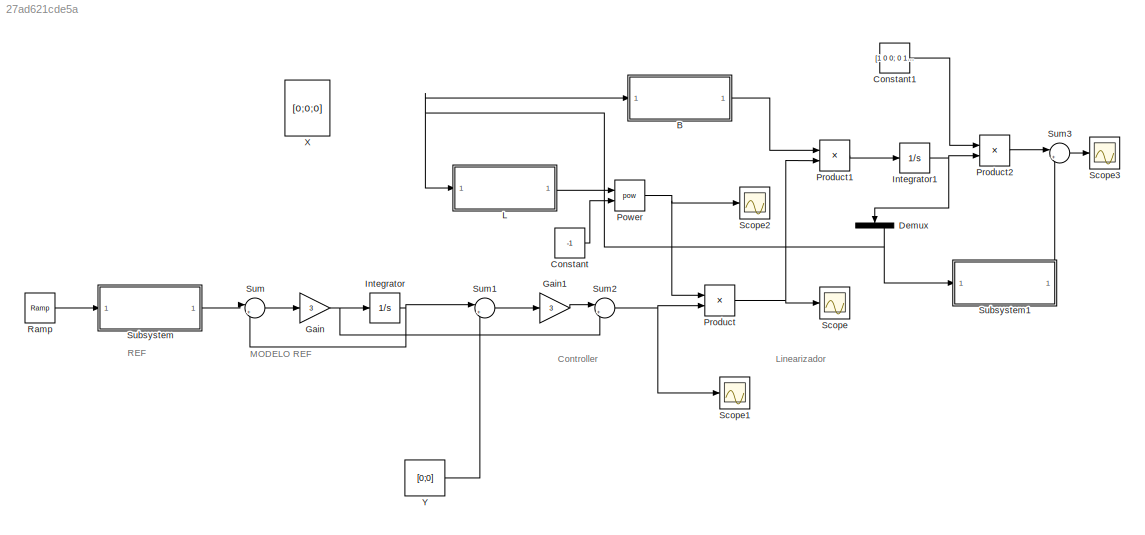
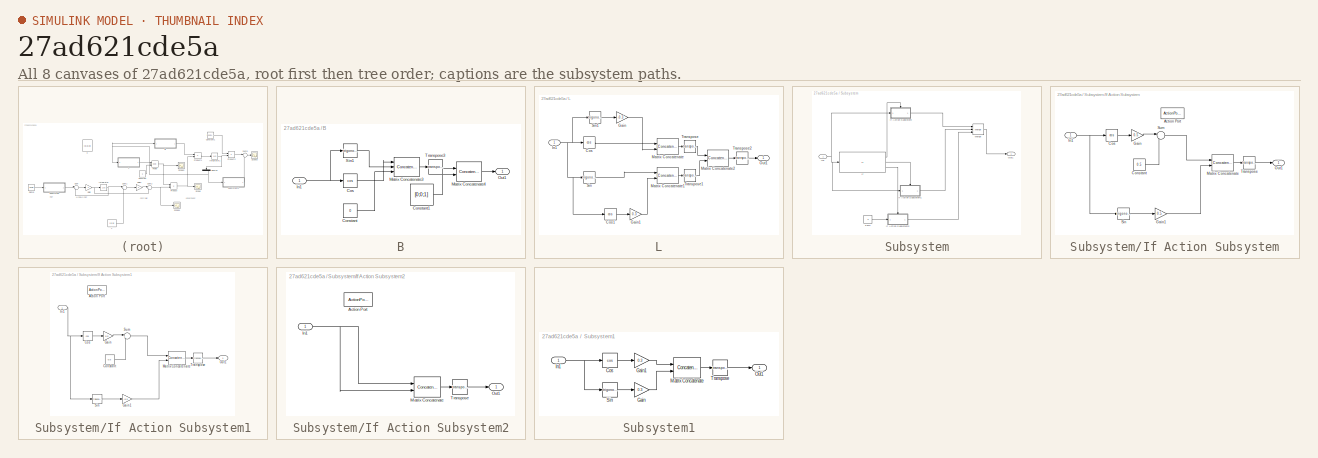
[diagram: thumbnail index - all 8 canvases of the model, root first then tree order]
MODEL slx_27ad621cde5a
KIND model
CONFIG AbsTol = auto
CONFIG EnableMultiTasking = off
CONFIG FixedStep = auto
CONFIG MaxStep = auto
CONFIG MinStep = auto
CONFIG RelTol = 1e-3
CONFIG SampleTimeConstraint = Unconstrained
CONFIG SolverName = VariableStepAuto
CONFIG StartTime = 0.0
CONFIG StopTime = 10.0
BLOCK [SubSystem] B
  Ports = [1, 1]
  RequestExecContextInheritance = off
BLOCK [Constant] B/Constant
  Value = 0
BLOCK [Constant] B/Constant1
  Value = [0;0;1]
  VectorParams1D = off
BLOCK [Trigonometry] B/Cos
  Operator = cos
  Ports = [1, 1]
BLOCK [Inport] B/In1
BLOCK [Concatenate] B/Matrix Concatenate3
  ConcatenateDimension = 2
  Mode = Multidimensional array
  NumInputs = 3
  Ports = [3, 1]
BLOCK [Concatenate] B/Matrix Concatenate4
  ConcatenateDimension = 2
  Mode = Multidimensional array
  Ports = [2, 1]
BLOCK [Outport] B/Out1
BLOCK [Trigonometry] B/Sin1
  Ports = [1, 1]
BLOCK [Math] B/Transpose3
  Operator = transpose
  Ports = [1, 1]
BLOCK [Constant] Constant
  Value = -1
BLOCK [Constant] Constant1
  Value = [1 0 0; 0 1 0]
  VectorParams1D = off
BLOCK [Demux] Demux
  NameLocation = left
  Outputs = 3
  Ports = [1, 3]
BLOCK [Gain] Gain
  Gain = 3
BLOCK [Gain] Gain1
  Gain = 3
BLOCK [Integrator] Integrator
  Ports = [1, 1]
BLOCK [Integrator] Integrator1
  Ports = [1, 1]
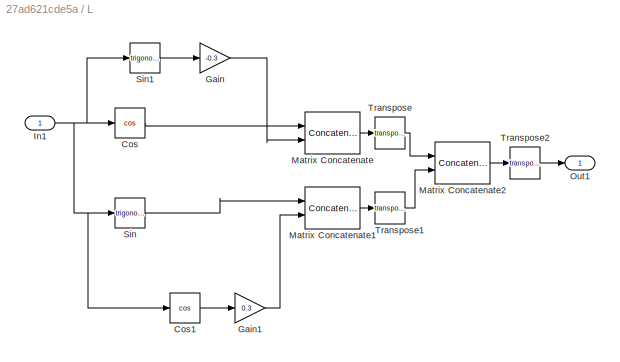
BLOCK [SubSystem] L
  Ports = [1, 1]
  RequestExecContextInheritance = off
BLOCK [Trigonometry] L/Cos
  Operator = cos
  Ports = [1, 1]
BLOCK [Trigonometry] L/Cos1
  Operator = cos
  Ports = [1, 1]
BLOCK [Gain] L/Gain
  Gain = -0.3
BLOCK [Gain] L/Gain1
  Gain = 0.3
BLOCK [Inport] L/In1
BLOCK [Concatenate] L/Matrix Concatenate
  ConcatenateDimension = 2
  Mode = Multidimensional array
  Ports = [2, 1]
BLOCK [Concatenate] L/Matrix Concatenate1
  ConcatenateDimension = 2
  Mode = Multidimensional array
  Ports = [2, 1]
BLOCK [Concatenate] L/Matrix Concatenate2
  ConcatenateDimension = 2
  Mode = Multidimensional array
  Ports = [2, 1]
BLOCK [Outport] L/Out1
BLOCK [Trigonometry] L/Sin
  Ports = [1, 1]
BLOCK [Trigonometry] L/Sin1
  Ports = [1, 1]
BLOCK [Math] L/Transpose
  Operator = transpose
  Ports = [1, 1]
BLOCK [Math] L/Transpose1
  Operator = transpose
  Ports = [1, 1]
BLOCK [Math] L/Transpose2
  Operator = transpose
  Ports = [1, 1]
BLOCK [Math] Power
  Operator = pow
  Ports = [2, 1]
BLOCK [Product] Product
  Multiplication = Matrix(*)
  Ports = [2, 1]
BLOCK [Product] Product1
  Multiplication = Matrix(*)
  Ports = [2, 1]
BLOCK [Product] Product2
  Multiplication = Matrix(*)
  Ports = [2, 1]
BLOCK [Reference] Ramp  REF=simulink/Sources/Ramp
  Ports = [0, 1]
  SourceBlock = simulink/Sources/Ramp
  SourceProductBaseCode = SL
  SourceType = Ramp
BLOCK [Scope] Scope
  Floating = off
  NumInputPorts = 1
  Ports = [1]
  ScopeSpecificationString = Simulink.scopes.TimeScopeBlockCfg('CurrentConfiguration', extmgr.ConfigurationSet(extmgr.Configuration('Core','General UI',true),extmgr.Configuration('Core','Source UI',true),extmgr.Configuration('Sources','WiredSimulink',true),extmgr.Configuration('Visuals','Time Domain',true,'SerializedDisplays',{struct('MinYLimReal','-3.74697','MaxYLimReal','3.74831','YLabelReal','','MinYLimMag','0.00000','MaxY...<+1392ch>
BLOCK [Scope] Scope1
  Floating = off
  NumInputPorts = 1
  Ports = [1]
  ScopeSpecificationString = Simulink.scopes.TimeScopeBlockCfg('CurrentConfiguration', extmgr.ConfigurationSet(extmgr.Configuration('Core','General UI',true),extmgr.Configuration('Core','Source UI',true),extmgr.Configuration('Sources','WiredSimulink',true,'DataLoggingVariableName','ScopeData1'),extmgr.Configuration('Visuals','Time Domain',true,'SerializedDisplays',{struct('MinYLimReal','-1.00000','MaxYLimReal','1.00000','YLab...<+1424ch>
BLOCK [Scope] Scope2
  Floating = off
  NumInputPorts = 1
  Ports = [1]
  ScopeSpecificationString = Simulink.scopes.TimeScopeBlockCfg('CurrentConfiguration', extmgr.ConfigurationSet(extmgr.Configuration('Core','General UI',true),extmgr.Configuration('Core','Source UI',true),extmgr.Configuration('Sources','WiredSimulink',true,'DataLoggingVariableName','ScopeData2'),extmgr.Configuration('Visuals','Time Domain',true,'SerializedDisplays',{struct('MinYLimReal','0.70833','MaxYLimReal','3.625','YLabelR...<+1599ch>
BLOCK [Scope] Scope3
  Floating = off
  NumInputPorts = 1
  Ports = [1]
  ScopeSpecificationString = Simulink.scopes.TimeScopeBlockCfg('CurrentConfiguration', extmgr.ConfigurationSet(extmgr.Configuration('Core','General UI',true),extmgr.Configuration('Core','Source UI',true),extmgr.Configuration('Sources','WiredSimulink',true,'DataLoggingVariableName','ScopeData3'),extmgr.Configuration('Visuals','Time Domain',true),extmgr.Configuration('Tools','Plot Navigation',true),extmgr.Configuration('Tools',...<+40ch>
BLOCK [SubSystem] Subsystem
  Ports = [1, 1]
  RequestExecContextInheritance = off
BLOCK [If] Subsystem/If
  ElseIfExpressions = u1>=6.28318531 & u1<12.5663706
  IfExpression = u1>=0 & u1<6.28318531
  Ports = [1, 3]
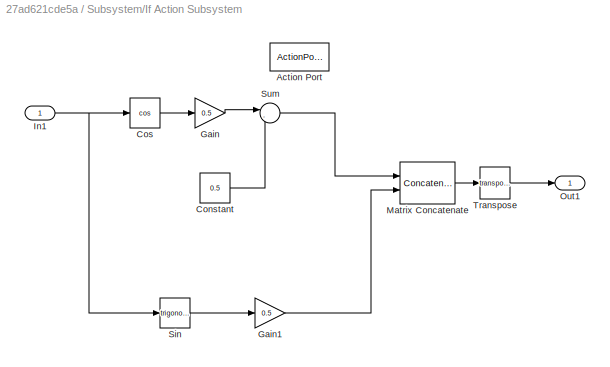
BLOCK [SubSystem] Subsystem/If Action Subsystem
  Ports = [1, 1, 0, 0, 0, 0, 0, 1]
  RequestExecContextInheritance = off
  TreatAsAtomicUnit = on
BLOCK [ActionPort] Subsystem/If Action Subsystem/Action Port
  ActionPortLabel = if(u1>=0 & u1<6.28318531)
BLOCK [Constant] Subsystem/If Action Subsystem/Constant
  Value = 0.5
BLOCK [Trigonometry] Subsystem/If Action Subsystem/Cos
  Operator = cos
  Ports = [1, 1]
BLOCK [Gain] Subsystem/If Action Subsystem/Gain
  Gain = 0.5
BLOCK [Gain] Subsystem/If Action Subsystem/Gain1
  Gain = 0.5
BLOCK [Inport] Subsystem/If Action Subsystem/In1
BLOCK [Concatenate] Subsystem/If Action Subsystem/Matrix Concatenate
  ConcatenateDimension = 2
  Mode = Multidimensional array
  Ports = [2, 1]
BLOCK [Outport] Subsystem/If Action Subsystem/Out1
BLOCK [Trigonometry] Subsystem/If Action Subsystem/Sin
  Ports = [1, 1]
BLOCK [Sum] Subsystem/If Action Subsystem/Sum
  Inputs = |-+
  Ports = [2, 1]
BLOCK [Math] Subsystem/If Action Subsystem/Transpose
  Operator = transpose
  Ports = [1, 1]
BLOCK [SubSystem] Subsystem/If Action Subsystem1
  Ports = [1, 1, 0, 0, 0, 0, 0, 1]
  RequestExecContextInheritance = off
  TreatAsAtomicUnit = on
BLOCK [ActionPort] Subsystem/If Action Subsystem1/Action Port
  ActionPortLabel = elseif(u1>=6.28318531 & u1<12.5663706)
BLOCK [Constant] Subsystem/If Action Subsystem1/Constant
  Value = 0.5
BLOCK [Trigonometry] Subsystem/If Action Subsystem1/Cos
  Operator = cos
  Ports = [1, 1]
BLOCK [Gain] Subsystem/If Action Subsystem1/Gain
  Gain = 0.5
BLOCK [Gain] Subsystem/If Action Subsystem1/Gain1
  Gain = -0.5
BLOCK [Inport] Subsystem/If Action Subsystem1/In1
BLOCK [Concatenate] Subsystem/If Action Subsystem1/Matrix Concatenate
  ConcatenateDimension = 2
  Mode = Multidimensional array
  Ports = [2, 1]
BLOCK [Outport] Subsystem/If Action Subsystem1/Out1
BLOCK [Trigonometry] Subsystem/If Action Subsystem1/Sin
  Ports = [1, 1]
BLOCK [Sum] Subsystem/If Action Subsystem1/Sum
  Inputs = |+-
  Ports = [2, 1]
BLOCK [Math] Subsystem/If Action Subsystem1/Transpose
  Operator = transpose
  Ports = [1, 1]
BLOCK [SubSystem] Subsystem/If Action Subsystem2
  Ports = [1, 1, 0, 0, 0, 0, 0, 1]
  RequestExecContextInheritance = off
  TreatAsAtomicUnit = on
BLOCK [ActionPort] Subsystem/If Action Subsystem2/Action Port
  ActionPortLabel = else
BLOCK [Inport] Subsystem/If Action Subsystem2/In1
BLOCK [Concatenate] Subsystem/If Action Subsystem2/Matrix Concatenate
  ConcatenateDimension = 2
  Mode = Multidimensional array
  Ports = [2, 1]
BLOCK [Outport] Subsystem/If Action Subsystem2/Out1
BLOCK [Math] Subsystem/If Action Subsystem2/Transpose
  Operator = transpose
  Ports = [1, 1]
BLOCK [Inport] Subsystem/In1
BLOCK [Merge] Subsystem/Merge
  Inputs = 3
  Ports = [3, 1]
BLOCK [Outport] Subsystem/Out1
BLOCK [Constant] Subsystem/Zero
  OutDataTypeStr = Inherit: Inherit via back propagation
  Value = 0
BLOCK [SubSystem] Subsystem1
  Ports = [1, 1]
  RequestExecContextInheritance = off
BLOCK [Trigonometry] Subsystem1/Cos
  Operator = cos
  Ports = [1, 1]
BLOCK [Gain] Subsystem1/Gain
  Gain = 0.3
BLOCK [Gain] Subsystem1/Gain1
  Gain = 0.3
BLOCK [Inport] Subsystem1/In1
BLOCK [Concatenate] Subsystem1/Matrix Concatenate
  ConcatenateDimension = 2
  Mode = Multidimensional array
  Ports = [2, 1]
BLOCK [Outport] Subsystem1/Out1
BLOCK [Trigonometry] Subsystem1/Sin
  Ports = [1, 1]
BLOCK [Math] Subsystem1/Transpose
  Operator = transpose
  Ports = [1, 1]
BLOCK [Sum] Sum
  Inputs = |+-
  Ports = [2, 1]
BLOCK [Sum] Sum1
  Inputs = |+-
  Ports = [2, 1]
BLOCK [Sum] Sum2
  Inputs = |++
  Ports = [2, 1]
BLOCK [Sum] Sum3
  Inputs = |++
  Ports = [2, 1]
BLOCK [Constant] X
  Value = [0;0;0]
  VectorParams1D = off
BLOCK [Constant] Y
  Value = [0;0]
  VectorParams1D = off
ANNOTATION (root): Controller
ANNOTATION (root): Linearizador
ANNOTATION (root): REF
ANNOTATION (root): MODELO REF
LINE B/Constant1:1 -> B/Matrix Concatenate4:2
LINE B/Constant:1 -> B/Matrix Concatenate3:3
LINE B/Cos:1 -> B/Matrix Concatenate3:1
NET B/In1:1 -> B/Cos:1, B/Sin1:1
LINE B/Matrix Concatenate3:1 -> B/Transpose3:1
LINE B/Matrix Concatenate4:1 -> B/Out1:1
LINE B/Sin1:1 -> B/Matrix Concatenate3:2
LINE B/Transpose3:1 -> B/Matrix Concatenate4:1
LINE B:1 -> Product1:1
LINE Constant1:1 -> Product2:1
LINE Constant:1 -> Power:2
NET Demux:3 -> B:1, L:1, Subsystem1:1
LINE Gain1:1 -> Sum2:1
NET Gain:1 -> Integrator:1, Sum2:2
NET Integrator1:1 -> Demux:1, Product2:2
NET Integrator:1 -> Sum1:1, Sum:2
LINE L/Cos1:1 -> L/Gain1:1
LINE L/Cos:1 -> L/Matrix Concatenate:1
LINE L/Gain1:1 -> L/Matrix Concatenate1:2
LINE L/Gain:1 -> L/Matrix Concatenate:2
NET L/In1:1 -> L/Cos1:1, L/Cos:1, L/Sin1:1, L/Sin:1
LINE L/Matrix Concatenate1:1 -> L/Transpose1:1
LINE L/Matrix Concatenate2:1 -> L/Transpose2:1
LINE L/Matrix Concatenate:1 -> L/Transpose:1
LINE L/Sin1:1 -> L/Gain:1
LINE L/Sin:1 -> L/Matrix Concatenate1:1
LINE L/Transpose1:1 -> L/Matrix Concatenate2:2
LINE L/Transpose2:1 -> L/Out1:1
LINE L/Transpose:1 -> L/Matrix Concatenate2:1
LINE L:1 -> Power:1
NET Power:1 -> Product:1, Scope2:1
LINE Product1:1 -> Integrator1:1
LINE Product2:1 -> Sum3:1
NET Product:1 -> Product1:2, Scope:1
LINE Ramp:1 -> Subsystem:1
LINE Subsystem/If Action Subsystem/Constant:1 -> Subsystem/If Action Subsystem/Sum:2
LINE Subsystem/If Action Subsystem/Cos:1 -> Subsystem/If Action Subsystem/Gain:1
LINE Subsystem/If Action Subsystem/Gain1:1 -> Subsystem/If Action Subsystem/Matrix Concatenate:2
LINE Subsystem/If Action Subsystem/Gain:1 -> Subsystem/If Action Subsystem/Sum:1
NET Subsystem/If Action Subsystem/In1:1 -> Subsystem/If Action Subsystem/Cos:1, Subsystem/If Action Subsystem/Sin:1
LINE Subsystem/If Action Subsystem/Matrix Concatenate:1 -> Subsystem/If Action Subsystem/Transpose:1
LINE Subsystem/If Action Subsystem/Sin:1 -> Subsystem/If Action Subsystem/Gain1:1
LINE Subsystem/If Action Subsystem/Sum:1 -> Subsystem/If Action Subsystem/Matrix Concatenate:1
LINE Subsystem/If Action Subsystem/Transpose:1 -> Subsystem/If Action Subsystem/Out1:1
LINE Subsystem/If Action Subsystem1/Constant:1 -> Subsystem/If Action Subsystem1/Sum:2
LINE Subsystem/If Action Subsystem1/Cos:1 -> Subsystem/If Action Subsystem1/Gain:1
LINE Subsystem/If Action Subsystem1/Gain1:1 -> Subsystem/If Action Subsystem1/Matrix Concatenate:2
LINE Subsystem/If Action Subsystem1/Gain:1 -> Subsystem/If Action Subsystem1/Sum:1
NET Subsystem/If Action Subsystem1/In1:1 -> Subsystem/If Action Subsystem1/Cos:1, Subsystem/If Action Subsystem1/Sin:1
LINE Subsystem/If Action Subsystem1/Matrix Concatenate:1 -> Subsystem/If Action Subsystem1/Transpose:1
LINE Subsystem/If Action Subsystem1/Sin:1 -> Subsystem/If Action Subsystem1/Gain1:1
LINE Subsystem/If Action Subsystem1/Sum:1 -> Subsystem/If Action Subsystem1/Matrix Concatenate:1
LINE Subsystem/If Action Subsystem1/Transpose:1 -> Subsystem/If Action Subsystem1/Out1:1
LINE Subsystem/If Action Subsystem1:1 -> Subsystem/Merge:2
NET Subsystem/If Action Subsystem2/In1:1 -> Subsystem/If Action Subsystem2/Matrix Concatenate:1, Subsystem/If Action Subsystem2/Matrix Concatenate:2
LINE Subsystem/If Action Subsystem2/Matrix Concatenate:1 -> Subsystem/If Action Subsystem2/Transpose:1
LINE Subsystem/If Action Subsystem2/Transpose:1 -> Subsystem/If Action Subsystem2/Out1:1
LINE Subsystem/If Action Subsystem2:1 -> Subsystem/Merge:3
LINE Subsystem/If Action Subsystem:1 -> Subsystem/Merge:1
LINE Subsystem/If:1 -> Subsystem/If Action Subsystem:ifaction
LINE Subsystem/If:2 -> Subsystem/If Action Subsystem1:ifaction
LINE Subsystem/If:3 -> Subsystem/If Action Subsystem2:ifaction
NET Subsystem/In1:1 -> Subsystem/If Action Subsystem1:1, Subsystem/If Action Subsystem:1, Subsystem/If:1
LINE Subsystem/Merge:1 -> Subsystem/Out1:1
LINE Subsystem/Zero:1 -> Subsystem/If Action Subsystem2:1
LINE Subsystem1/Cos:1 -> Subsystem1/Gain1:1
LINE Subsystem1/Gain1:1 -> Subsystem1/Matrix Concatenate:1
LINE Subsystem1/Gain:1 -> Subsystem1/Matrix Concatenate:2
NET Subsystem1/In1:1 -> Subsystem1/Cos:1, Subsystem1/Sin:1
LINE Subsystem1/Matrix Concatenate:1 -> Subsystem1/Transpose:1
LINE Subsystem1/Sin:1 -> Subsystem1/Gain:1
LINE Subsystem1/Transpose:1 -> Subsystem1/Out1:1
LINE Subsystem1:1 -> Sum3:2
LINE Subsystem:1 -> Sum:1
LINE Sum1:1 -> Gain1:1
NET Sum2:1 -> Product:2, Scope1:1
LINE Sum3:1 -> Scope3:1
LINE Sum:1 -> Gain:1
LINE Y:1 -> Sum1:2
note: NET lines group one-source signal fan-out (src -> all destinations, sorted); 1:1 wires keep LINE
